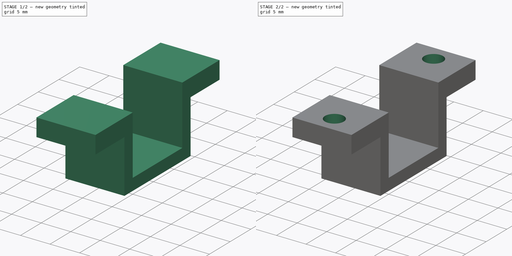
[diagram: build sequence overview — one tinted view per stage of 2, left to right]
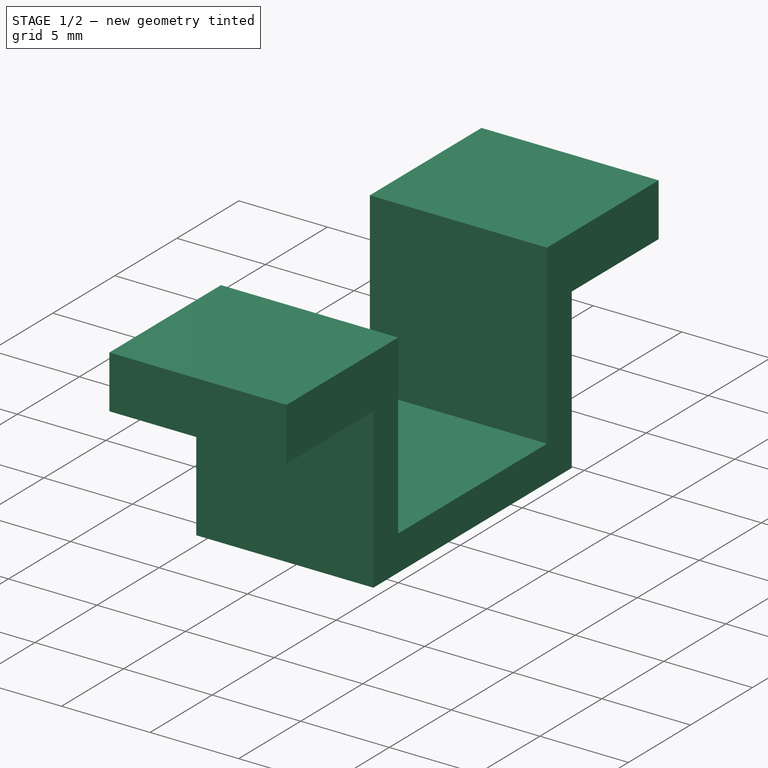
[diagram: stage 1 of 2 — iso view after this stage's code; geometry added in this stage tinted green]
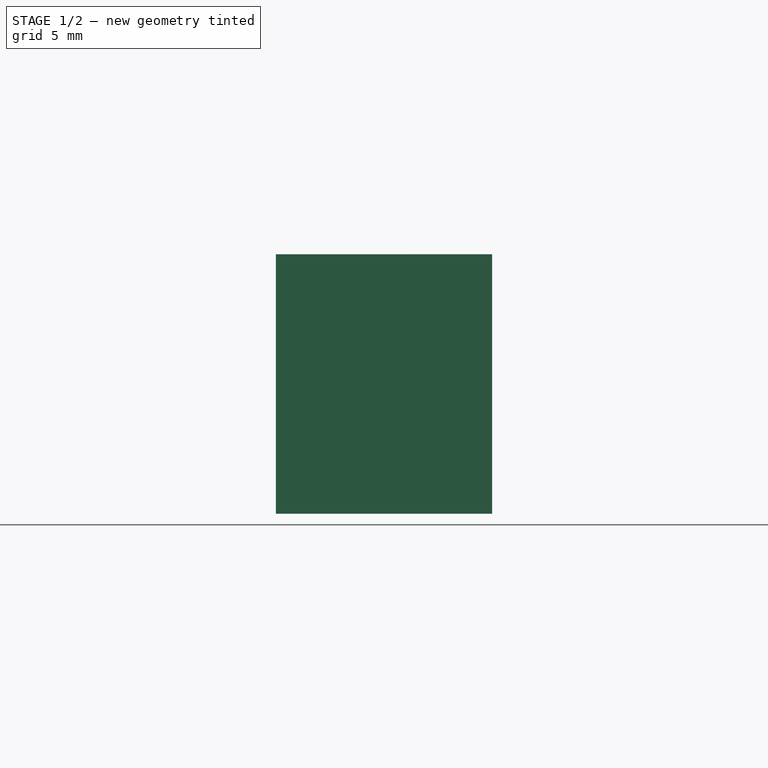
[diagram: stage 1 of 2 — front view after this stage's code; geometry added in this stage tinted green]
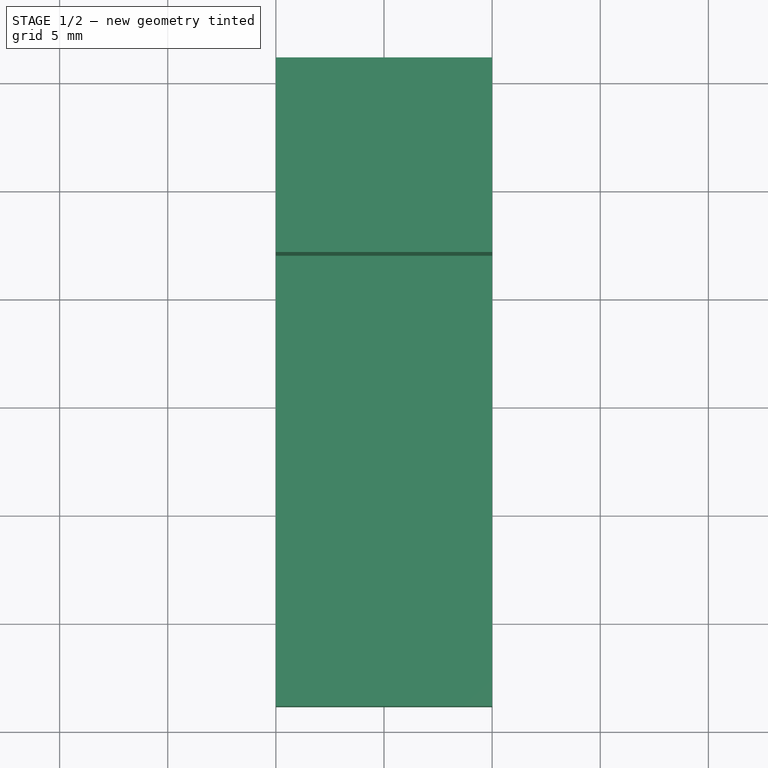
[diagram: stage 1 of 2 — top view after this stage's code; geometry added in this stage tinted green]
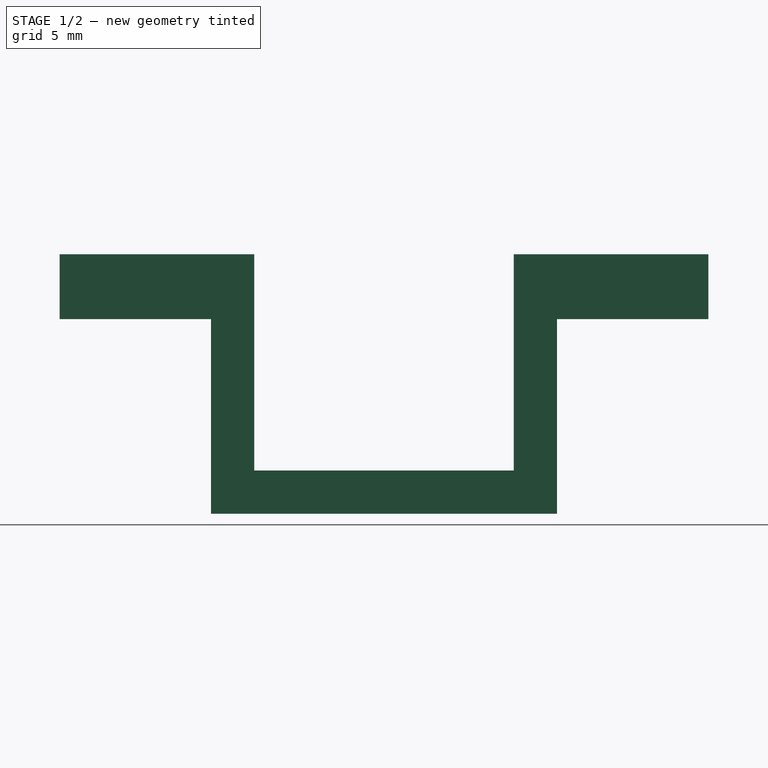
[diagram: stage 1 of 2 — right view after this stage's code; geometry added in this stage tinted green]
FCSTD DOCUMENT  (FreeCAD 1.0R39319 (Git))
Label: MotorHolder
License: All rights reserved
LicenseURL: https://en.wikipedia.org/wiki/All_rights_reserved
objects: Sketcher::SketchObject×2, PartDesign::SubShapeBinder×1, PartDesign::Pad×1, PartDesign::Pocket×1, PartDesign::Body×1, App::Part×1
note: 12 computed .brp shape members not serialized (recipe doc carries the construction recipe); baked Part::Feature solids carry a one-line shape summary decoded from their .brp
EXTERNAL_REF file=MotorPlate.FCStd obj=Part

FEATURE [PartDesign::SubShapeBinder] Binder  label="MotorPlateBody"
  BindCopyOnChange = 0
  BindMode = 0
  ClaimChildren = false
  Context = -> Part [Body.Binder.]
  Fuse = false
  MakeFace = true
  OffsetFill = false
  OffsetIntersection = false
  OffsetJoinType = 0
  OffsetOpenResult = false
  PartialLoad = false
  Placement = pos=(-5,0,0) rot=(0,0,1;0rad)
  Refine = true
  Relative = true
  Support = -> [<external MotorPlate.FCStd>#Part[Body.]]
  _Version = 2
FEATURE [Sketcher::SketchObject] Sketch
  ArcFitTolerance = 1e-06
  AttachmentSupport = -> [YZ_Plane001]
  ExternalGeometry = -> [Binder]
  FullyConstrained = true
  MakeInternals = false
  MapMode = 5
  Placement = pos=(0,0,0) rot=(0.57735,0.57735,0.57735;2.0944rad)
  sketch-geometry (13):
    g0: LineSegment StartX=-9 StartY=-15 StartZ=0 EndX=1.8e-15 EndY=-15 EndZ=0
    g1: LineSegment StartX=1.8e-15 StartY=-15 StartZ=0 EndX=1.8e-15 EndY=-25 EndZ=0
    g2: LineSegment StartX=1.8e-15 StartY=-25 StartZ=0 EndX=12 EndY=-25 EndZ=0
    g3: LineSegment StartX=12 StartY=-25 StartZ=0 EndX=12 EndY=-15 EndZ=0
    g4: LineSegment StartX=12 StartY=-15 StartZ=0 EndX=21 EndY=-15 EndZ=0
    g5: LineSegment [constr] StartX=6 StartY=-15 StartZ=0 EndX=6 EndY=-27 EndZ=0
    g6: LineSegment StartX=-9 StartY=-15 StartZ=0 EndX=-9 EndY=-18 EndZ=0
    g7: LineSegment StartX=-9 StartY=-18 StartZ=0 EndX=-2 EndY=-18 EndZ=0
    g8: LineSegment StartX=-2 StartY=-18 StartZ=0 EndX=-2 EndY=-27 EndZ=0
    g9: LineSegment StartX=-2 StartY=-27 StartZ=0 EndX=14 EndY=-27 EndZ=0
    g10: LineSegment StartX=14 StartY=-27 StartZ=0 EndX=14 EndY=-18 EndZ=0
    g11: LineSegment StartX=14 StartY=-18 StartZ=0 EndX=21 EndY=-18 EndZ=0
    g12: LineSegment StartX=21 StartY=-18 StartZ=0 EndX=21 EndY=-15 EndZ=0
  constraints (32):
    c: Coincident(g0,g-3)
    c: PointOnObject(g0,g-3)
    c: Coincident(g1,g0)
    c: Coincident(g2,g1)
    c: Coincident(g3,g2)
    c: PointOnObject(g3,g-3)
    c: Coincident(g4,g3)
    c: Coincident(g4,g-3)
    c: Symmetric(g-3,g-3,g5)
    c: Symmetric(g0,g3,g5)
    c: Symmetric(g1,g2,g5)
    c: Vertical(g1)
    c: Coincident(g6,g0)
    c: Vertical(g6)
    c: Coincident(g7,g6)
    c: Horizontal(g7)
    c: Coincident(g8,g7)
    c: Vertical(g8)
    c: Coincident(g9,g8)
    c: Coincident(g10,g9)
    c: Coincident(g11,g10)
    c: Coincident(g12,g11)
    c: Coincident(g12,g4)
    c: Symmetric(g6,g11,g5)
    c: Symmetric(g7,g10,g5)
    c: Symmetric(g8,g9,g5)
    c: PointOnObject(g5,g9)
    c: DistanceY(g6,g6) = 3
    c: Distance(g1,g8) = 2
    c: DistanceX(g0,g3) = 12
    c: DistanceY(g8,g1) = 2
    c: DistanceY(g1,g1) = 10
FEATURE [PartDesign::Pad] Pad
  Direction = (1,0,0)
  Length = 10
  Length2 = 10
  Placement = pos=(0,0,0) rot=(1,1,1;2.0944rad)
  Profile = -> Sketch
  ReferenceAxis = -> Sketch [N_Axis]
  Refine = true
  Suppressed = false
  Type = 0
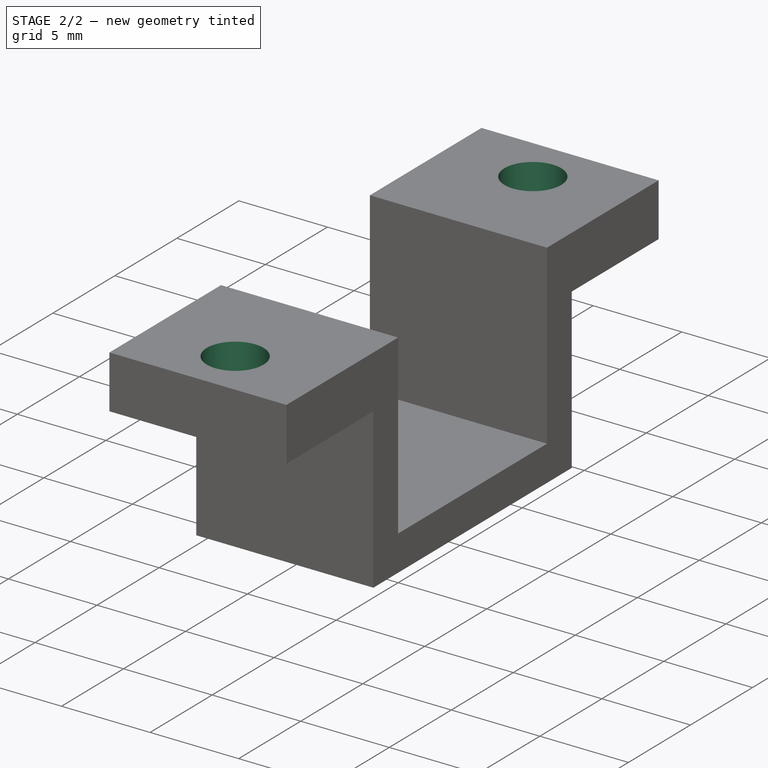
[diagram: stage 2 of 2 — iso view after this stage's code; geometry added in this stage tinted green]
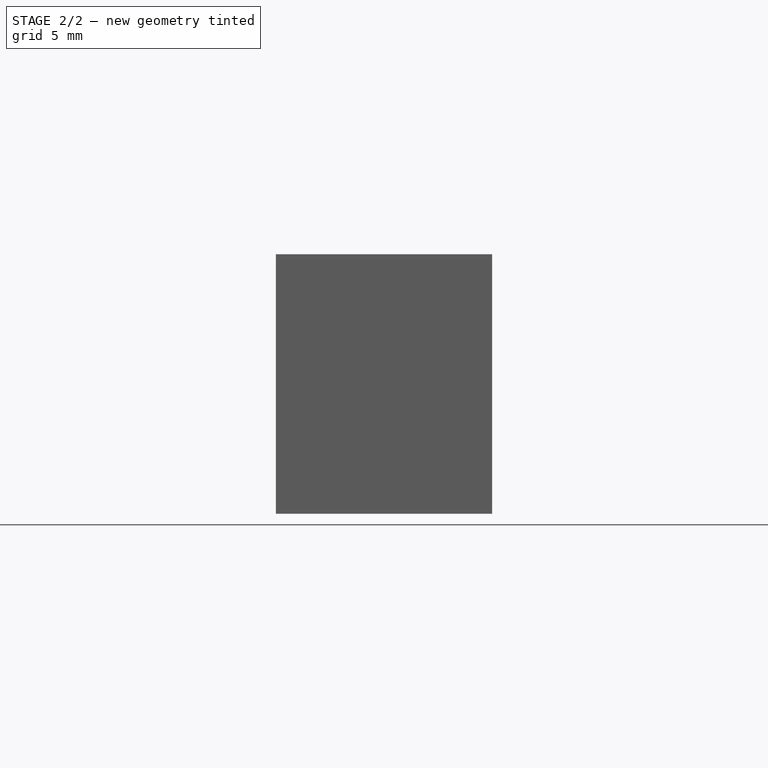
[diagram: stage 2 of 2 — front view after this stage's code; geometry added in this stage tinted green]
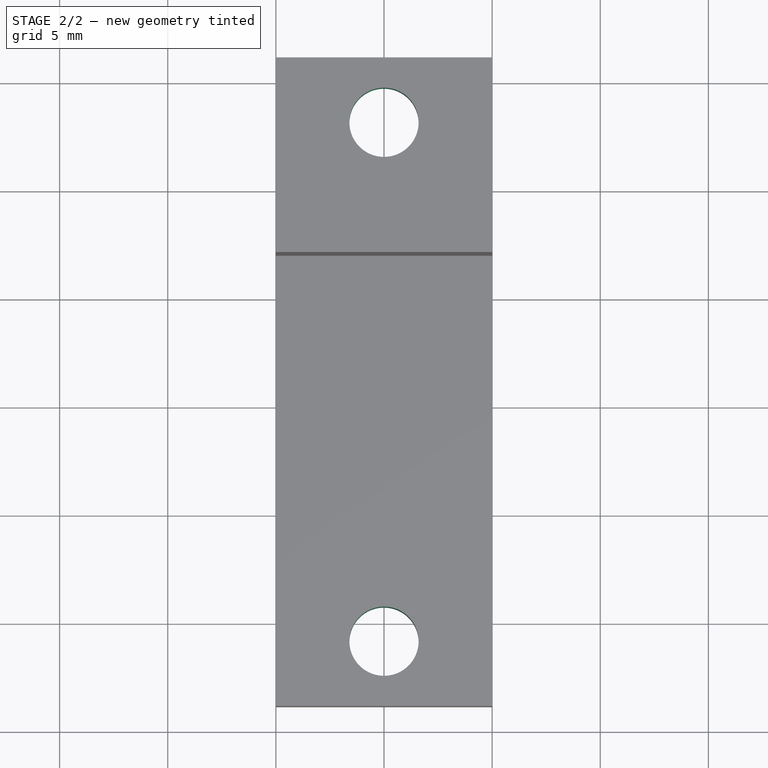
[diagram: stage 2 of 2 — top view after this stage's code; geometry added in this stage tinted green]
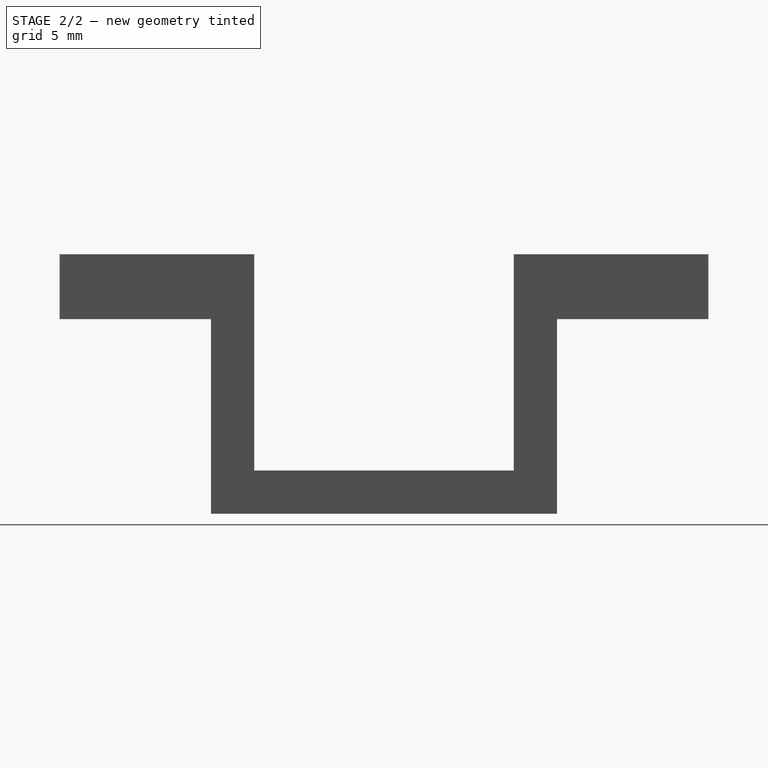
[diagram: stage 2 of 2 — right view after this stage's code; geometry added in this stage tinted green]
FEATURE [Sketcher::SketchObject] Sketch001
  ArcFitTolerance = 1e-06
  AttachmentSupport = -> [Pad]
  ExternalGeometry = -> [Binder]
  FullyConstrained = true
  MakeInternals = false
  MapMode = 5
  Placement = pos=(1.7e-15,-5e-15,-15) rot=(0,0,-1;1.5708rad)
  sketch-geometry (2):
    g0: Circle CenterX=6 CenterY=5 CenterZ=0 NormalX=0 NormalY=0 NormalZ=1 AngleXU=0 Radius=1.6
    g1: Circle CenterX=-18 CenterY=5 CenterZ=0 NormalX=0 NormalY=0 NormalZ=1 AngleXU=0 Radius=1.6
  constraints (4):
    c: Coincident(g0,g-3)
    c: Coincident(g1,g-4)
    c: Diameter(g1) = 3.2
    c: Equal(g1,g0)
FEATURE [PartDesign::Pocket] Pocket
  BaseFeature = -> Pad
  Direction = (0,0,-1)
  Length = 0
  Length2 = 5
  Placement = pos=(0,0,0) rot=(1,1,1;2.0944rad)
  Profile = -> Sketch001
  ReferenceAxis = -> Sketch001 [N_Axis]
  Refine = true
  Suppressed = false
  Type = 3
  UpToFace = -> Pad [Face11]
FEATURE [PartDesign::Body] Body  label="MotorHolderBody"
  AllowCompound = false
  Group = -> [Binder,Sketch,Pad,Sketch001,Pocket]
  Origin = -> Origin001
  Tip = -> Pocket
FEATURE [App::Part] Part  label="MotorHolderPart"
  Group = -> [Body]
  Origin = -> Origin
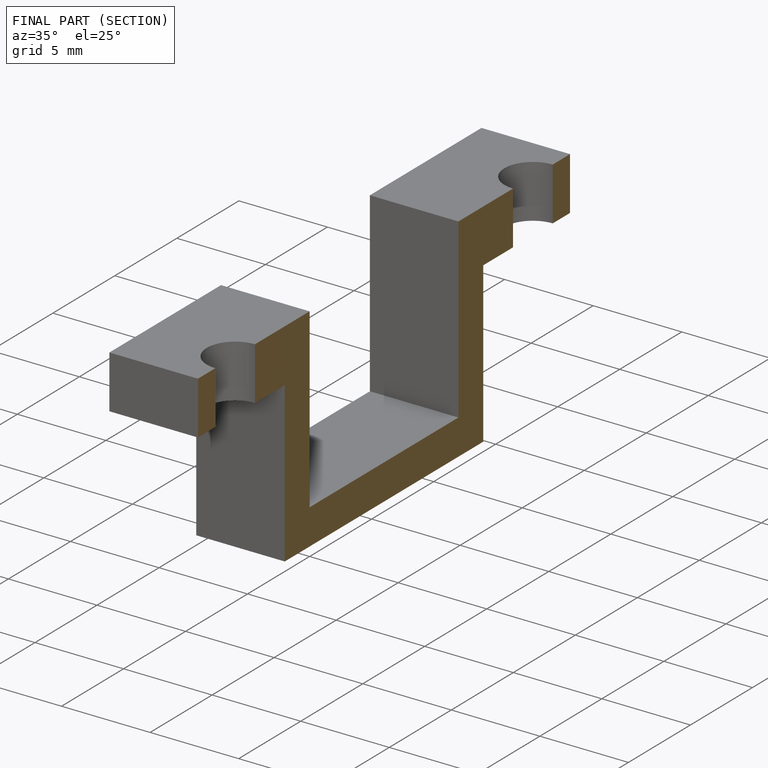
[diagram: finished part — half-section view (interior)]
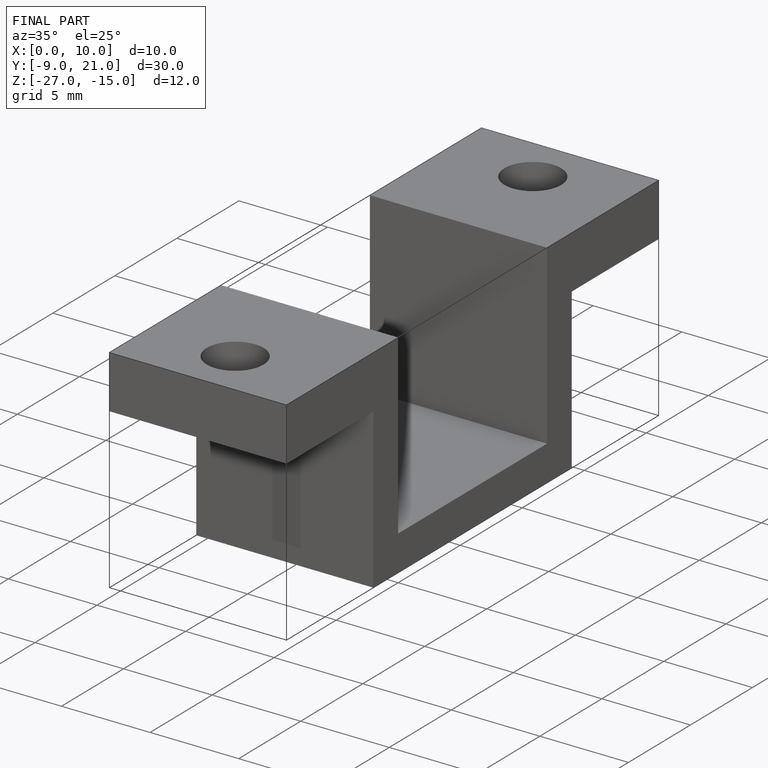
[diagram: finished part — iso view with bounding-box wireframe]
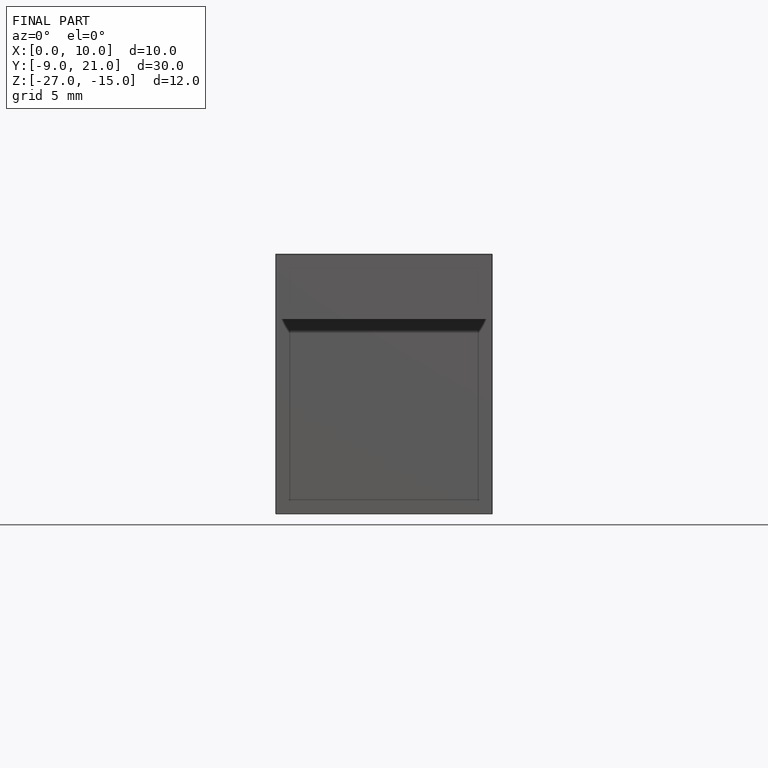
[diagram: finished part — front view with bounding-box wireframe]
